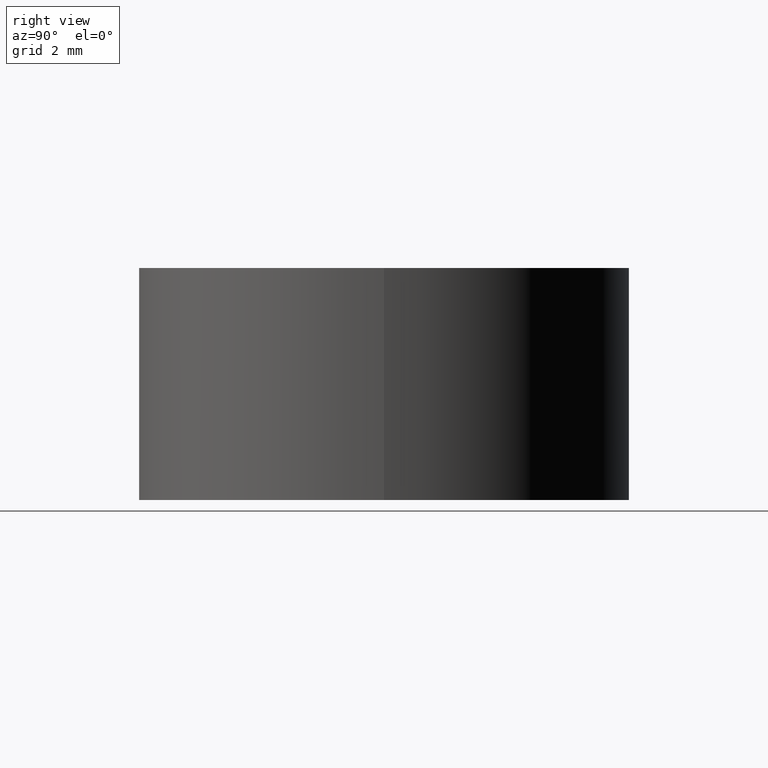
[diagram: clean part render]
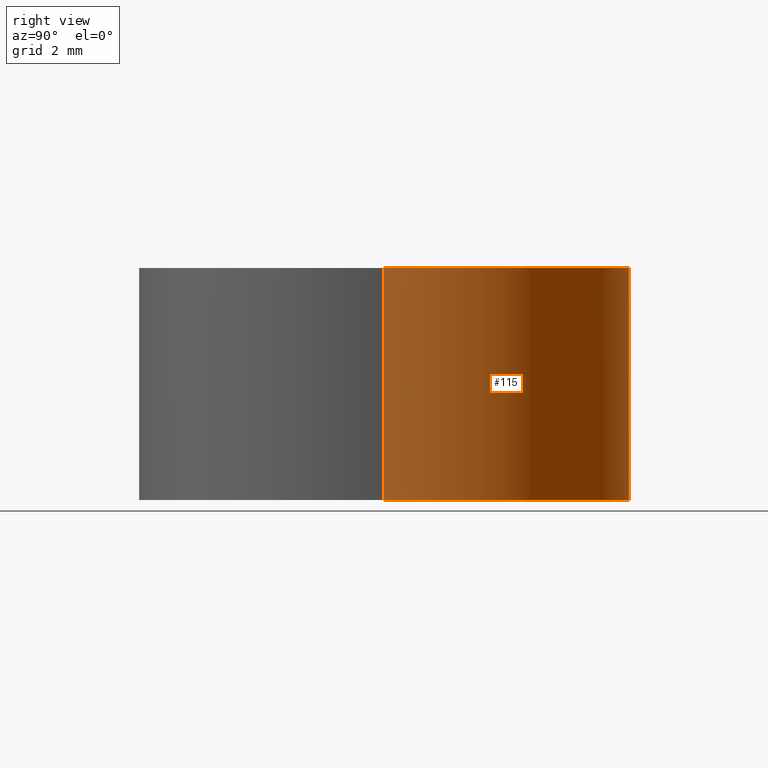
[diagram: same view with one face highlighted and labeled with its STEP entity id]
A machine part, right view. The second image highlights one B-rep face of the part: STEP entity #115.
In plain terms, the highlighted cylindrical surface (partial cylindrical patch) has radius 6.35 mm, axis along (-0, -0, -1).
Its self-contained STEP definition (entity closure, byte-faithful):
#3 = CARTESIAN_POINT ( 'NONE',  ( 0.000000000000000000, 0.000000000000000000, 0.000000000000000000 ) ) ;
#11 = ORIENTED_EDGE ( 'NONE', *, *, #32, .F. ) ;
#15 = DIRECTION ( 'NONE',  ( -1.000000000000000000, 0.000000000000000000, 0.000000000000000000 ) ) ;
#18 = AXIS2_PLACEMENT_3D ( 'NONE', #3, #76, #65 ) ;
#26 = ORIENTED_EDGE ( 'NONE', *, *, #121, .T. ) ;
#27 = ORIENTED_EDGE ( 'NONE', *, *, #43, .T. ) ;
#28 = CIRCLE ( 'NONE', #18, 6.349999999999999645 ) ;
#29 = VERTEX_POINT ( 'NONE', #50 ) ;
#32 = EDGE_CURVE ( 'NONE', #130, #104, #150, .T. ) ;
#33 = DIRECTION ( 'NONE',  ( -0.000000000000000000, -0.000000000000000000, -1.000000000000000000 ) ) ;
#43 = EDGE_CURVE ( 'NONE', #130, #184, #118, .T. ) ;
#49 = CARTESIAN_POINT ( 'NONE',  ( -6.349999999999999645, 0.000000000000000000, 6.000000000000000000 ) ) ;
#50 = CARTESIAN_POINT ( 'NONE',  ( 6.349999999999999645, 7.776507174585692163E-16, 0.000000000000000000 ) ) ;
#61 = VECTOR ( 'NONE', #33, 1000.000000000000000 ) ;
#65 = DIRECTION ( 'NONE',  ( 1.000000000000000000, 0.000000000000000000, 0.000000000000000000 ) ) ;
#72 = DIRECTION ( 'NONE',  ( -0.000000000000000000, -0.000000000000000000, -1.000000000000000000 ) ) ;
#76 = DIRECTION ( 'NONE',  ( 0.000000000000000000, 0.000000000000000000, 1.000000000000000000 ) ) ;
#77 = DIRECTION ( 'NONE',  ( -0.000000000000000000, -0.000000000000000000, -1.000000000000000000 ) ) ;
#79 = EDGE_CURVE ( 'NONE', #184, #29, #200, .T. ) ;
#94 = CARTESIAN_POINT ( 'NONE',  ( 6.349999999988937383, 7.776507174578918806E-16, 6.000000000000005329 ) ) ;
#104 = VERTEX_POINT ( 'NONE', #136 ) ;
#105 = CARTESIAN_POINT ( 'NONE',  ( 6.349999999999999645, 7.776507174585692163E-16, 6.000000000000000000 ) ) ;
#108 = CARTESIAN_POINT ( 'NONE',  ( 0.000000000000000000, 0.000000000000000000, 6.000000000000000000 ) ) ;
#115 = ADVANCED_FACE ( 'NONE', ( #193 ), #173, .T. ) ;
#118 = CIRCLE ( 'NONE', #163, 6.349999999988691357 ) ;
#121 = EDGE_CURVE ( 'NONE', #29, #104, #28, .T. ) ;
#123 = DIRECTION ( 'NONE',  ( 1.000000000000000000, 0.000000000000000000, 0.000000000000000000 ) ) ;
#130 = VERTEX_POINT ( 'NONE', #174 ) ;
#135 = CARTESIAN_POINT ( 'NONE',  ( 2.463307335887066074E-13, 0.000000000000000000, 6.000000000000005329 ) ) ;
#136 = CARTESIAN_POINT ( 'NONE',  ( -6.349999999999999645, 0.000000000000000000, 0.000000000000000000 ) ) ;
#150 = LINE ( 'NONE', #49, #195 ) ;
#163 = AXIS2_PLACEMENT_3D ( 'NONE', #135, #72, #123 ) ;
#167 = ORIENTED_EDGE ( 'NONE', *, *, #79, .T. ) ;
#172 = AXIS2_PLACEMENT_3D ( 'NONE', #108, #77, #15 ) ;
#173 = CYLINDRICAL_SURFACE ( 'NONE', #172, 6.349999999999999645 ) ;
#174 = CARTESIAN_POINT ( 'NONE',  ( -6.349999999988444443, 0.000000000000000000, 6.000000000000005329 ) ) ;
#182 = EDGE_LOOP ( 'NONE', ( #27, #167, #26, #11 ) ) ;
#184 = VERTEX_POINT ( 'NONE', #94 ) ;
#185 = DIRECTION ( 'NONE',  ( -0.000000000000000000, -0.000000000000000000, -1.000000000000000000 ) ) ;
#193 = FACE_OUTER_BOUND ( 'NONE', #182, .T. ) ;
#195 = VECTOR ( 'NONE', #185, 1000.000000000000000 ) ;
#200 = LINE ( 'NONE', #105, #61 ) ;